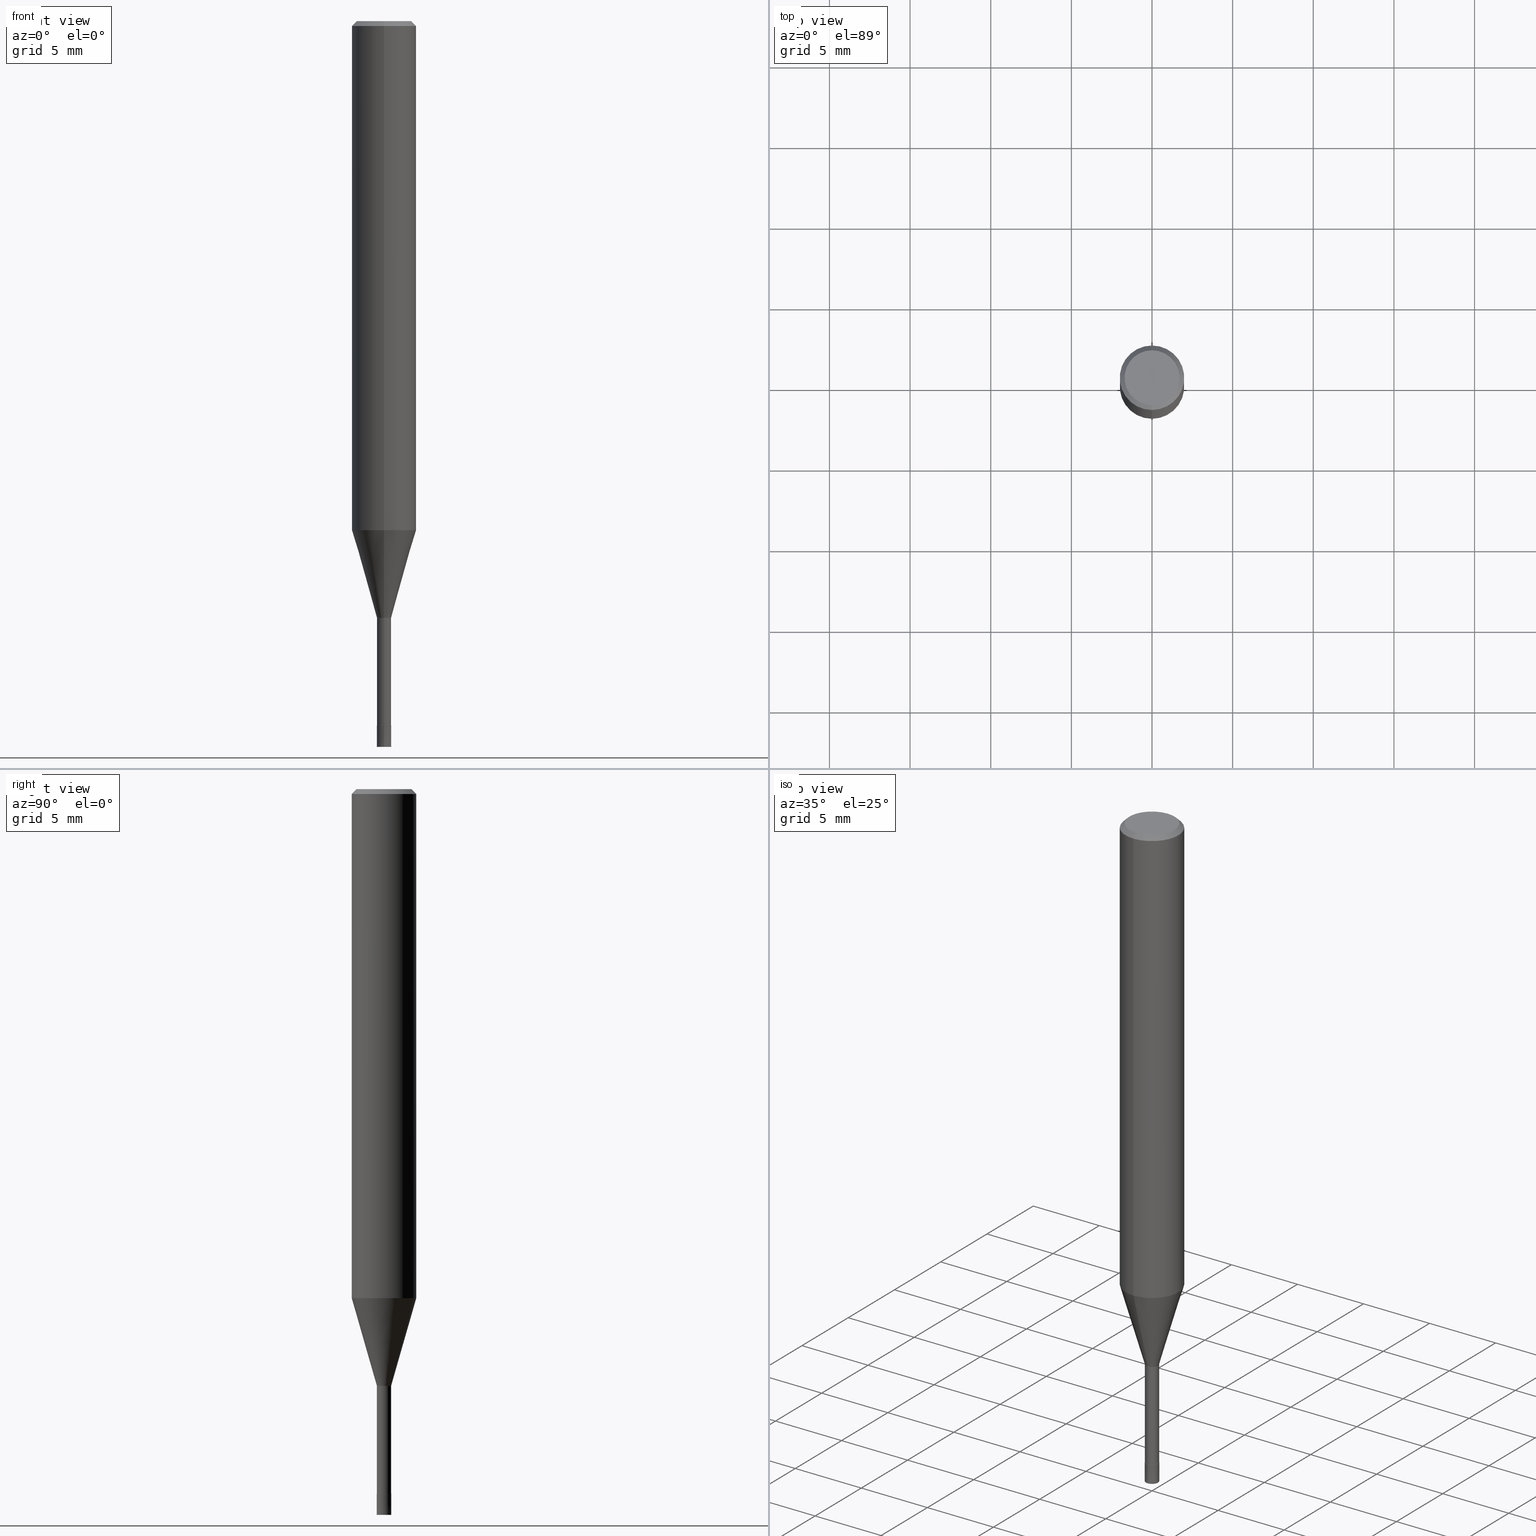
[diagram: canonical four-view strip — front | top / right | iso, engineering-drawing reading convention]
A machine part, canonical four-view strip (front | top / right | iso — engineering-drawing reading convention). The complete STEP part file that produces these views, byte-faithful:
ISO-10303-21;
HEADER;
FILE_DESCRIPTION(('no description'),'unknown implementation level');
FILE_NAME('HLS2009-080-Huellk.stp','  ',('CIMSOURCE GmbH'),('CADClick - KiM GmbH - www.kimweb.de'),'unknown preprocess','ACIS','unknown authorization');
FILE_SCHEMA(('automotive_design'));
ENDSEC;
DATA;
#1=MECHANICAL_DESIGN_GEOMETRIC_PRESENTATION_REPRESENTATION(' ',(#14,#15,#16,#17,#18,#19,#20,#21,#22,#23,#24,#25,#26,#27,#28,#29,#30,#31,#32,#33,#34,#35,#36,#37,#38,#39,#40,#41,#42,#43,#44,#45,#46,#47,#48,#49,#50,#51,#52,#53,#54,#55,#56,#57,#58,#59,#60,#61,#62,#63,#64,#65,#66,#67,#68,#69,#70,#71,#72),#10);
#2=PRODUCT_DEFINITION_CONTEXT('',#73,'design');
#3=APPLICATION_PROTOCOL_DEFINITION('INTERNATIONAL STANDARD','automotive_design',1994,#73);
#4=PRODUCT_CATEGORY_RELATIONSHIP('NONE','NONE',#74,#75);
#5=SHAPE_DEFINITION_REPRESENTATION(#76,#77);
#6=PRODUCT_DEFINITION_CONTEXT('',#78,'design');
#7=APPLICATION_PROTOCOL_DEFINITION('INTERNATIONAL STANDARD','automotive_design',1994,#78);
#8=PRODUCT_CATEGORY_RELATIONSHIP('NONE','NONE',#79,#80);
#9=SHAPE_DEFINITION_REPRESENTATION(#81,#82);
#10= (GEOMETRIC_REPRESENTATION_CONTEXT(3)GLOBAL_UNCERTAINTY_ASSIGNED_CONTEXT((#85))GLOBAL_UNIT_ASSIGNED_CONTEXT((#87,#88,#89))REPRESENTATION_CONTEXT('NONE','WORKSPACE'));
#14=STYLED_ITEM('',(#91),#92);
#15=STYLED_ITEM('',(#93),#94);
#16=STYLED_ITEM('',(#95),#96);
#17=STYLED_ITEM('',(#97),#98);
#18=STYLED_ITEM('',(#99),#100);
#19=STYLED_ITEM('',(#101),#102);
#20=STYLED_ITEM('',(#103),#104);
#21=STYLED_ITEM('',(#105),#106);
#22=STYLED_ITEM('',(#107),#108);
#23=STYLED_ITEM('',(#109),#110);
#24=STYLED_ITEM('',(#111),#112);
#25=STYLED_ITEM('',(#113),#114);
#26=STYLED_ITEM('',(#115),#116);
#27=STYLED_ITEM('',(#117),#118);
#28=STYLED_ITEM('',(#119),#120);
#29=STYLED_ITEM('',(#121),#122);
#30=STYLED_ITEM('',(#123),#124);
#31=STYLED_ITEM('',(#125),#126);
#32=STYLED_ITEM('',(#127),#128);
#33=STYLED_ITEM('',(#129),#130);
#34=STYLED_ITEM('',(#131),#132);
#35=STYLED_ITEM('',(#133),#134);
#36=STYLED_ITEM('',(#135),#136);
#37=STYLED_ITEM('',(#137),#138);
#38=STYLED_ITEM('',(#139),#140);
#39=STYLED_ITEM('',(#141),#142);
#40=STYLED_ITEM('',(#143),#144);
#41=STYLED_ITEM('',(#145),#146);
#42=STYLED_ITEM('',(#147),#148);
#43=STYLED_ITEM('',(#149),#150);
#44=STYLED_ITEM('',(#151),#152);
#45=STYLED_ITEM('',(#153),#154);
#46=STYLED_ITEM('',(#155),#156);
#47=STYLED_ITEM('',(#157),#158);
#48=STYLED_ITEM('',(#159),#160);
#49=STYLED_ITEM('',(#161),#162);
#50=STYLED_ITEM('',(#163),#164);
#51=STYLED_ITEM('',(#165),#166);
#52=STYLED_ITEM('',(#167),#168);
#53=STYLED_ITEM('',(#169),#170);
#54=STYLED_ITEM('',(#171),#172);
#55=STYLED_ITEM('',(#173),#174);
#56=STYLED_ITEM('',(#175),#176);
#57=STYLED_ITEM('',(#177),#178);
#58=STYLED_ITEM('',(#179),#180);
#59=STYLED_ITEM('',(#181),#182);
#60=STYLED_ITEM('',(#183),#184);
#61=STYLED_ITEM('',(#185),#186);
#62=STYLED_ITEM('',(#187),#188);
#63=STYLED_ITEM('',(#189),#190);
#64=STYLED_ITEM('',(#191),#192);
#65=STYLED_ITEM('',(#193),#194);
#66=STYLED_ITEM('',(#195),#196);
#67=STYLED_ITEM('',(#197),#198);
#68=STYLED_ITEM('',(#199),#200);
#69=STYLED_ITEM('',(#201),#202);
#70=STYLED_ITEM('',(#203),#204);
#71=STYLED_ITEM('',(#205),#206);
#72=STYLED_ITEM('',(#207),#208);
#73=APPLICATION_CONTEXT(' ');
#74=PRODUCT_CATEGORY('part','NONE');
#75=PRODUCT_RELATED_PRODUCT_CATEGORY('detail',' ',(#209));
#76=PRODUCT_DEFINITION_SHAPE('NONE','NONE',#210);
#77=ADVANCED_BREP_SHAPE_REPRESENTATION('1',(#164,#211),#10);
#78=APPLICATION_CONTEXT(' ');
#79=PRODUCT_CATEGORY('part','NONE');
#80=PRODUCT_RELATED_PRODUCT_CATEGORY('detail',' ',(#212));
#81=PRODUCT_DEFINITION_SHAPE('NONE','NONE',#213);
#82=ADVANCED_BREP_SHAPE_REPRESENTATION('2',(#162,#214),#10);
#85=UNCERTAINTY_MEASURE_WITH_UNIT(LENGTH_MEASURE(1.0E-006),#87,'','');
#87= (CONVERSION_BASED_UNIT('MILLIMETRE',#217)LENGTH_UNIT()NAMED_UNIT(#220));
#88= (NAMED_UNIT(#222)PLANE_ANGLE_UNIT()SI_UNIT($,.RADIAN.));
#89= (NAMED_UNIT(#222)SOLID_ANGLE_UNIT()SI_UNIT($,.STERADIAN.));
#91=PRESENTATION_STYLE_ASSIGNMENT((#228));
#92=VERTEX_POINT('',#229);
#93=PRESENTATION_STYLE_ASSIGNMENT((#230));
#94=ADVANCED_FACE('',(#231),#232,.T.);
#95=PRESENTATION_STYLE_ASSIGNMENT((#233));
#96=EDGE_CURVE('',#146,#114,#234,.T.);
#97=PRESENTATION_STYLE_ASSIGNMENT((#235));
#98=VERTEX_POINT('',#236);
#99=PRESENTATION_STYLE_ASSIGNMENT((#237));
#100=ADVANCED_FACE('',(#238),#239,.T.);
#101=PRESENTATION_STYLE_ASSIGNMENT((#240));
#102=EDGE_CURVE('',#122,#126,#241,.T.);
#103=PRESENTATION_STYLE_ASSIGNMENT((#242));
#104=EDGE_CURVE('',#108,#110,#243,.T.);
#105=PRESENTATION_STYLE_ASSIGNMENT((#244));
#106=EDGE_CURVE('',#152,#178,#245,.T.);
#107=PRESENTATION_STYLE_ASSIGNMENT((#246));
#108=VERTEX_POINT('',#247);
#109=PRESENTATION_STYLE_ASSIGNMENT((#248));
#110=VERTEX_POINT('',#249);
#111=PRESENTATION_STYLE_ASSIGNMENT((#250));
#112=EDGE_CURVE('',#98,#108,#251,.T.);
#113=PRESENTATION_STYLE_ASSIGNMENT((#252));
#114=VERTEX_POINT('',#253);
#115=PRESENTATION_STYLE_ASSIGNMENT((#254));
#116=ADVANCED_FACE('',(#255),#256,.T.);
#117=PRESENTATION_STYLE_ASSIGNMENT((#257));
#118=EDGE_CURVE('',#110,#122,#258,.T.);
#119=PRESENTATION_STYLE_ASSIGNMENT((#259));
#120=ADVANCED_FACE('',(#260),#261,.T.);
#121=PRESENTATION_STYLE_ASSIGNMENT((#262));
#122=VERTEX_POINT('',#263);
#123=PRESENTATION_STYLE_ASSIGNMENT((#264));
#124=EDGE_CURVE('',#98,#122,#265,.T.);
#125=PRESENTATION_STYLE_ASSIGNMENT((#266));
#126=VERTEX_POINT('',#267);
#127=PRESENTATION_STYLE_ASSIGNMENT((#268));
#128=ADVANCED_FACE('',(#269),#270,.T.);
#129=PRESENTATION_STYLE_ASSIGNMENT((#271));
#130=VERTEX_POINT('',#272);
#131=PRESENTATION_STYLE_ASSIGNMENT((#273));
#132=EDGE_CURVE('',#146,#152,#274,.T.);
#133=PRESENTATION_STYLE_ASSIGNMENT((#275));
#134=ADVANCED_FACE('',(#276),#277,.T.);
#135=PRESENTATION_STYLE_ASSIGNMENT((#278));
#136=EDGE_CURVE('',#208,#92,#279,.T.);
#137=PRESENTATION_STYLE_ASSIGNMENT((#280));
#138=ADVANCED_FACE('',(#281,#282),#283,.T.);
#139=PRESENTATION_STYLE_ASSIGNMENT((#284));
#140=EDGE_CURVE('',#188,#144,#285,.T.);
#141=PRESENTATION_STYLE_ASSIGNMENT((#286));
#142=ADVANCED_FACE('',(#287),#288,.T.);
#143=PRESENTATION_STYLE_ASSIGNMENT((#289));
#144=VERTEX_POINT('',#290);
#145=PRESENTATION_STYLE_ASSIGNMENT((#291));
#146=VERTEX_POINT('',#292);
#147=PRESENTATION_STYLE_ASSIGNMENT((#293));
#148=EDGE_CURVE('',#178,#152,#294,.T.);
#149=PRESENTATION_STYLE_ASSIGNMENT((#295));
#150=ADVANCED_FACE('',(#296),#297,.T.);
#151=PRESENTATION_STYLE_ASSIGNMENT((#298));
#152=VERTEX_POINT('',#299);
#153=PRESENTATION_STYLE_ASSIGNMENT((#300));
#154=ADVANCED_FACE('',(#301),#302,.T.);
#155=PRESENTATION_STYLE_ASSIGNMENT((#303));
#156=EDGE_CURVE('',#130,#92,#304,.T.);
#157=PRESENTATION_STYLE_ASSIGNMENT((#305));
#158=EDGE_CURVE('',#208,#188,#306,.T.);
#159=PRESENTATION_STYLE_ASSIGNMENT((#307));
#160=ADVANCED_FACE('',(#308),#309,.T.);
#161=PRESENTATION_STYLE_ASSIGNMENT((#310));
#162=MANIFOLD_SOLID_BREP('2',#311);
#163=PRESENTATION_STYLE_ASSIGNMENT((#312));
#164=MANIFOLD_SOLID_BREP('1',#313);
#165=PRESENTATION_STYLE_ASSIGNMENT((#314));
#166=EDGE_CURVE('',#110,#108,#315,.T.);
#167=PRESENTATION_STYLE_ASSIGNMENT((#316));
#168=EDGE_CURVE('',#122,#98,#317,.T.);
#169=PRESENTATION_STYLE_ASSIGNMENT((#318));
#170=VERTEX_POINT('',#319);
#171=PRESENTATION_STYLE_ASSIGNMENT((#320));
#172=EDGE_CURVE('',#114,#146,#321,.T.);
#173=PRESENTATION_STYLE_ASSIGNMENT((#322));
#174=EDGE_CURVE('',#126,#184,#323,.T.);
#175=PRESENTATION_STYLE_ASSIGNMENT((#324));
#176=EDGE_CURVE('',#184,#126,#325,.T.);
#177=PRESENTATION_STYLE_ASSIGNMENT((#326));
#178=VERTEX_POINT('',#327);
#179=PRESENTATION_STYLE_ASSIGNMENT((#328));
#180=EDGE_CURVE('',#130,#188,#329,.T.);
#181=PRESENTATION_STYLE_ASSIGNMENT((#330));
#182=EDGE_CURVE('',#178,#114,#331,.T.);
#183=PRESENTATION_STYLE_ASSIGNMENT((#332));
#184=VERTEX_POINT('',#333);
#185=PRESENTATION_STYLE_ASSIGNMENT((#334));
#186=ADVANCED_FACE('',(#335),#336,.T.);
#187=PRESENTATION_STYLE_ASSIGNMENT((#337));
#188=VERTEX_POINT('',#338);
#189=PRESENTATION_STYLE_ASSIGNMENT((#339));
#190=EDGE_CURVE('',#184,#98,#340,.T.);
#191=PRESENTATION_STYLE_ASSIGNMENT((#341));
#192=ADVANCED_FACE('',(#342),#343,.T.);
#193=PRESENTATION_STYLE_ASSIGNMENT((#344));
#194=EDGE_CURVE('',#188,#130,#345,.T.);
#195=PRESENTATION_STYLE_ASSIGNMENT((#346));
#196=ADVANCED_FACE('',(#347),#348,.T.);
#197=PRESENTATION_STYLE_ASSIGNMENT((#349));
#198=EDGE_CURVE('',#92,#208,#350,.T.);
#199=PRESENTATION_STYLE_ASSIGNMENT((#351));
#200=EDGE_CURVE('',#170,#130,#352,.T.);
#201=PRESENTATION_STYLE_ASSIGNMENT((#353));
#202=EDGE_CURVE('',#170,#144,#354,.T.);
#203=PRESENTATION_STYLE_ASSIGNMENT((#355));
#204=EDGE_CURVE('',#144,#170,#356,.T.);
#205=PRESENTATION_STYLE_ASSIGNMENT((#357));
#206=ADVANCED_FACE('',(#358),#359,.T.);
#207=PRESENTATION_STYLE_ASSIGNMENT((#360));
#208=VERTEX_POINT('',#361);
#209=PRODUCT('1','1','PART-1-DESC',(#362));
#210=PRODUCT_DEFINITION('NONE','NONE',#363,#2);
#211=AXIS2_PLACEMENT_3D('',#364,#365,#366);
#212=PRODUCT('2','2','PART-2-DESC',(#367));
#213=PRODUCT_DEFINITION('NONE','NONE',#368,#6);
#214=AXIS2_PLACEMENT_3D('',#369,#370,#371);
#217=LENGTH_MEASURE_WITH_UNIT(LENGTH_MEASURE(1.0),#372);
#220=DIMENSIONAL_EXPONENTS(1.0,0.0,0.0,0.0,0.0,0.0,0.0);
#222=DIMENSIONAL_EXPONENTS(0.0,0.0,0.0,0.0,0.0,0.0,0.0);
#228=POINT_STYLE(' ',#373,POSITIVE_LENGTH_MEASURE(1.0E-006),#374);
#229=CARTESIAN_POINT('',(0.0,0.43995,-43.7));
#230=SURFACE_STYLE_USAGE(.BOTH.,#375);
#231=FACE_OUTER_BOUND('',#376,.T.);
#232=CONICAL_SURFACE('',#377,0.44995,7.69230767713464E-005);
#233=CURVE_STYLE('',#378,POSITIVE_LENGTH_MEASURE(1.0E-006),#379);
#234=CIRCLE('',#380,0.4499);
#235=POINT_STYLE(' ',#381,POSITIVE_LENGTH_MEASURE(1.0E-006),#382);
#236=CARTESIAN_POINT('',(0.0,2.0,-0.300000000000001));
#237=SURFACE_STYLE_USAGE(.BOTH.,#383);
#238=FACE_OUTER_BOUND('',#384,.T.);
#239=CONICAL_SURFACE('',#385,1.21995,0.279270532486472);
#240=CURVE_STYLE('',#386,POSITIVE_LENGTH_MEASURE(1.0E-006),#387);
#241=LINE('',#388,#389);
#242=CURVE_STYLE('',#390,POSITIVE_LENGTH_MEASURE(1.0E-006),#391);
#243=CIRCLE('',#392,2.0);
#244=CURVE_STYLE('',#393,POSITIVE_LENGTH_MEASURE(1.0E-006),#394);
#245=CIRCLE('',#395,0.45);
#246=POINT_STYLE(' ',#396,POSITIVE_LENGTH_MEASURE(1.0E-006),#397);
#247=CARTESIAN_POINT('',(0.0,2.0,-31.56));
#248=POINT_STYLE(' ',#398,POSITIVE_LENGTH_MEASURE(1.0E-006),#399);
#249=CARTESIAN_POINT('',(2.44921270764475E-016,-2.0,-31.56));
#250=CURVE_STYLE('',#400,POSITIVE_LENGTH_MEASURE(1.0E-006),#401);
#251=LINE('',#402,#403);
#252=POINT_STYLE(' ',#404,POSITIVE_LENGTH_MEASURE(1.0E-006),#405);
#253=CARTESIAN_POINT('',(5.50950398584687E-017,-0.4499,-43.7));
#254=SURFACE_STYLE_USAGE(.BOTH.,#406);
#255=FACE_OUTER_BOUND('',#407,.T.);
#256=CYLINDRICAL_SURFACE('',#408,0.43995);
#257=CURVE_STYLE('',#409,POSITIVE_LENGTH_MEASURE(1.0E-006),#410);
#258=LINE('',#411,#412);
#259=SURFACE_STYLE_USAGE(.BOTH.,#413);
#260=FACE_OUTER_BOUND('',#414,.T.);
#261=PLANE('',#415);
#262=POINT_STYLE(' ',#416,POSITIVE_LENGTH_MEASURE(1.0E-006),#417);
#263=CARTESIAN_POINT('',(2.44921270764475E-016,-2.0,-0.300000000000001));
#264=CURVE_STYLE('',#418,POSITIVE_LENGTH_MEASURE(1.0E-006),#419);
#265=CIRCLE('',#420,2.0);
#266=POINT_STYLE(' ',#421,POSITIVE_LENGTH_MEASURE(1.0E-006),#422);
#267=CARTESIAN_POINT('',(2.08183080149804E-016,-1.7,0.0));
#268=SURFACE_STYLE_USAGE(.BOTH.,#423);
#269=FACE_OUTER_BOUND('',#424,.T.);
#270=CONICAL_SURFACE('',#425,0.44995,7.69230767713464E-005);
#271=POINT_STYLE(' ',#426,POSITIVE_LENGTH_MEASURE(1.0E-006),#427);
#272=CARTESIAN_POINT('',(0.0,0.43995,-37.0));
#273=CURVE_STYLE('',#428,POSITIVE_LENGTH_MEASURE(1.0E-006),#429);
#274=LINE('',#430,#431);
#275=SURFACE_STYLE_USAGE(.BOTH.,#432);
#276=FACE_OUTER_BOUND('',#433,.T.);
#277=PLANE('',#434);
#278=CURVE_STYLE('',#435,POSITIVE_LENGTH_MEASURE(1.0E-006),#436);
#279=CIRCLE('',#437,0.43995);
#280=SURFACE_STYLE_USAGE(.BOTH.,#438);
#281=FACE_OUTER_BOUND('',#439,.T.);
#282=FACE_BOUND('',#440,.T.);
#283=PLANE('',#441);
#284=CURVE_STYLE('',#442,POSITIVE_LENGTH_MEASURE(1.0E-006),#443);
#285=LINE('',#444,#445);
#286=SURFACE_STYLE_USAGE(.BOTH.,#446);
#287=FACE_OUTER_BOUND('',#447,.T.);
#288=CYLINDRICAL_SURFACE('',#448,2.0);
#289=POINT_STYLE(' ',#449,POSITIVE_LENGTH_MEASURE(1.0E-006),#450);
#290=CARTESIAN_POINT('',(2.44915147732706E-016,-1.99995,-31.56));
#291=POINT_STYLE(' ',#451,POSITIVE_LENGTH_MEASURE(1.0E-006),#452);
#292=CARTESIAN_POINT('',(0.0,0.4499,-43.7));
#293=CURVE_STYLE('',#453,POSITIVE_LENGTH_MEASURE(1.0E-006),#454);
#294=CIRCLE('',#455,0.45);
#295=SURFACE_STYLE_USAGE(.BOTH.,#456);
#296=FACE_OUTER_BOUND('',#457,.T.);
#297=PLANE('',#458);
#298=POINT_STYLE(' ',#459,POSITIVE_LENGTH_MEASURE(1.0E-006),#460);
#299=CARTESIAN_POINT('',(0.0,0.45,-45.0));
#300=SURFACE_STYLE_USAGE(.BOTH.,#461);
#301=FACE_OUTER_BOUND('',#462,.T.);
#302=CYLINDRICAL_SURFACE('',#463,2.0);
#303=CURVE_STYLE('',#464,POSITIVE_LENGTH_MEASURE(1.0E-006),#465);
#304=LINE('',#466,#467);
#305=CURVE_STYLE('',#468,POSITIVE_LENGTH_MEASURE(1.0E-006),#469);
#306=LINE('',#470,#471);
#307=SURFACE_STYLE_USAGE(.BOTH.,#472);
#308=FACE_OUTER_BOUND('',#473,.T.);
#309=PLANE('',#474);
#310=SURFACE_STYLE_USAGE(.BOTH.,#475);
#311=CLOSED_SHELL('',(#94,#160,#128,#150));
#312=SURFACE_STYLE_USAGE(.BOTH.,#476);
#313=CLOSED_SHELL('',(#192,#206,#142,#196,#138,#134,#186,#154,#100,#116,#120));
#314=CURVE_STYLE('',#477,POSITIVE_LENGTH_MEASURE(1.0E-006),#478);
#315=CIRCLE('',#479,2.0);
#316=CURVE_STYLE('',#480,POSITIVE_LENGTH_MEASURE(1.0E-006),#481);
#317=CIRCLE('',#482,2.0);
#318=POINT_STYLE(' ',#483,POSITIVE_LENGTH_MEASURE(1.0E-006),#484);
#319=CARTESIAN_POINT('',(0.0,1.99995,-31.56));
#320=CURVE_STYLE('',#485,POSITIVE_LENGTH_MEASURE(1.0E-006),#486);
#321=CIRCLE('',#487,0.4499);
#322=CURVE_STYLE('',#488,POSITIVE_LENGTH_MEASURE(1.0E-006),#489);
#323=CIRCLE('',#490,1.7);
#324=CURVE_STYLE('',#491,POSITIVE_LENGTH_MEASURE(1.0E-006),#492);
#325=CIRCLE('',#493,1.7);
#326=POINT_STYLE(' ',#494,POSITIVE_LENGTH_MEASURE(1.0E-006),#495);
#327=CARTESIAN_POINT('',(5.5107285922007E-017,-0.45,-45.0));
#328=CURVE_STYLE('',#496,POSITIVE_LENGTH_MEASURE(1.0E-006),#497);
#329=CIRCLE('',#498,0.43995);
#330=CURVE_STYLE('',#499,POSITIVE_LENGTH_MEASURE(1.0E-006),#500);
#331=LINE('',#501,#502);
#332=POINT_STYLE(' ',#503,POSITIVE_LENGTH_MEASURE(1.0E-006),#504);
#333=CARTESIAN_POINT('',(0.0,1.7,0.0));
#334=SURFACE_STYLE_USAGE(.BOTH.,#505);
#335=FACE_OUTER_BOUND('',#506,.T.);
#336=CONICAL_SURFACE('',#507,1.85,0.785398163397447);
#337=POINT_STYLE(' ',#508,POSITIVE_LENGTH_MEASURE(1.0E-006),#509);
#338=CARTESIAN_POINT('',(5.38765565364155E-017,-0.43995,-37.0));
#339=CURVE_STYLE('',#510,POSITIVE_LENGTH_MEASURE(1.0E-006),#511);
#340=LINE('',#512,#513);
#341=SURFACE_STYLE_USAGE(.BOTH.,#514);
#342=FACE_OUTER_BOUND('',#515,.T.);
#343=CYLINDRICAL_SURFACE('',#516,0.43995);
#344=CURVE_STYLE('',#517,POSITIVE_LENGTH_MEASURE(1.0E-006),#518);
#345=CIRCLE('',#519,0.43995);
#346=SURFACE_STYLE_USAGE(.BOTH.,#520);
#347=FACE_OUTER_BOUND('',#521,.T.);
#348=CONICAL_SURFACE('',#522,1.85,0.785398163397447);
#349=CURVE_STYLE('',#523,POSITIVE_LENGTH_MEASURE(1.0E-006),#524);
#350=CIRCLE('',#525,0.43995);
#351=CURVE_STYLE('',#526,POSITIVE_LENGTH_MEASURE(1.0E-006),#527);
#352=LINE('',#528,#529);
#353=CURVE_STYLE('',#530,POSITIVE_LENGTH_MEASURE(1.0E-006),#531);
#354=CIRCLE('',#532,1.99995);
#355=CURVE_STYLE('',#533,POSITIVE_LENGTH_MEASURE(1.0E-006),#534);
#356=CIRCLE('',#535,1.99995);
#357=SURFACE_STYLE_USAGE(.BOTH.,#536);
#358=FACE_OUTER_BOUND('',#537,.T.);
#359=CONICAL_SURFACE('',#538,1.21995,0.279270532486472);
#360=POINT_STYLE(' ',#539,POSITIVE_LENGTH_MEASURE(1.0E-006),#540);
#361=CARTESIAN_POINT('',(5.38765565364155E-017,-0.43995,-43.7));
#362=PRODUCT_CONTEXT('',#73,'mechanical');
#363=PRODUCT_DEFINITION_FORMATION_WITH_SPECIFIED_SOURCE(' ','NONE',#209,.NOT_KNOWN.);
#364=CARTESIAN_POINT('',(0.0,0.0,0.0));
#365=DIRECTION('',(0.0,0.0,1.0));
#366=DIRECTION('',(1.0,0.0,0.0));
#367=PRODUCT_CONTEXT('',#78,'mechanical');
#368=PRODUCT_DEFINITION_FORMATION_WITH_SPECIFIED_SOURCE(' ','NONE',#212,.NOT_KNOWN.);
#369=CARTESIAN_POINT('',(0.0,0.0,0.0));
#370=DIRECTION('',(0.0,0.0,1.0));
#371=DIRECTION('',(1.0,0.0,0.0));
#372= (NAMED_UNIT(#220)LENGTH_UNIT()SI_UNIT(.MILLI.,.METRE.));
#373=PRE_DEFINED_MARKER('');
#374=COLOUR_RGB('',0.498039215803146,0.498039215803146,0.498039215803146);
#375=SURFACE_SIDE_STYLE('',(#542));
#376=EDGE_LOOP('',(#543,#544,#545,#546));
#377=AXIS2_PLACEMENT_3D('',#547,#548,#549);
#378=DRAUGHTING_PRE_DEFINED_CURVE_FONT('continuous');
#379=COLOUR_RGB('',0.800000011920929,0.800000011920929,0.800000011920929);
#380=AXIS2_PLACEMENT_3D('',#550,#551,#552);
#381=PRE_DEFINED_MARKER('');
#382=COLOUR_RGB('',0.498039215803146,0.498039215803146,0.498039215803146);
#383=SURFACE_SIDE_STYLE('',(#553));
#384=EDGE_LOOP('',(#554,#555,#556,#557));
#385=AXIS2_PLACEMENT_3D('',#558,#559,#560);
#386=DRAUGHTING_PRE_DEFINED_CURVE_FONT('continuous');
#387=COLOUR_RGB('',0.498039215803146,0.498039215803146,0.498039215803146);
#388=CARTESIAN_POINT('',(2.2655217545714E-016,-1.85,-0.149999999999999));
#389=VECTOR('',#561,1.0);
#390=DRAUGHTING_PRE_DEFINED_CURVE_FONT('continuous');
#391=COLOUR_RGB('',0.498039215803146,0.498039215803146,0.498039215803146);
#392=AXIS2_PLACEMENT_3D('',#562,#563,#564);
#393=DRAUGHTING_PRE_DEFINED_CURVE_FONT('continuous');
#394=COLOUR_RGB('',0.800000011920929,0.800000011920929,0.800000011920929);
#395=AXIS2_PLACEMENT_3D('',#565,#566,#567);
#396=PRE_DEFINED_MARKER('');
#397=COLOUR_RGB('',0.498039215803146,0.498039215803146,0.498039215803146);
#398=PRE_DEFINED_MARKER('');
#399=COLOUR_RGB('',0.498039215803146,0.498039215803146,0.498039215803146);
#400=DRAUGHTING_PRE_DEFINED_CURVE_FONT('continuous');
#401=COLOUR_RGB('',0.498039215803146,0.498039215803146,0.498039215803146);
#402=CARTESIAN_POINT('',(-2.44921270764475E-016,2.0,-15.93));
#403=VECTOR('',#568,1.0);
#404=PRE_DEFINED_MARKER('');
#405=COLOUR_RGB('',0.800000011920929,0.800000011920929,0.800000011920929);
#406=SURFACE_SIDE_STYLE('',(#569));
#407=EDGE_LOOP('',(#570,#571,#572,#573));
#408=AXIS2_PLACEMENT_3D('',#574,#575,#576);
#409=DRAUGHTING_PRE_DEFINED_CURVE_FONT('continuous');
#410=COLOUR_RGB('',0.498039215803146,0.498039215803146,0.498039215803146);
#411=CARTESIAN_POINT('',(2.44921270764475E-016,-2.0,-15.93));
#412=VECTOR('',#577,1.0);
#413=SURFACE_SIDE_STYLE('',(#578));
#414=EDGE_LOOP('',(#579,#580));
#415=AXIS2_PLACEMENT_3D('',#581,#582,#583);
#416=PRE_DEFINED_MARKER('');
#417=COLOUR_RGB('',0.498039215803146,0.498039215803146,0.498039215803146);
#418=DRAUGHTING_PRE_DEFINED_CURVE_FONT('continuous');
#419=COLOUR_RGB('',0.498039215803146,0.498039215803146,0.498039215803146);
#420=AXIS2_PLACEMENT_3D('',#584,#585,#586);
#421=PRE_DEFINED_MARKER('');
#422=COLOUR_RGB('',0.498039215803146,0.498039215803146,0.498039215803146);
#423=SURFACE_SIDE_STYLE('',(#587));
#424=EDGE_LOOP('',(#588,#589,#590,#591));
#425=AXIS2_PLACEMENT_3D('',#592,#593,#594);
#426=PRE_DEFINED_MARKER('');
#427=COLOUR_RGB('',0.498039215803146,0.498039215803146,0.498039215803146);
#428=DRAUGHTING_PRE_DEFINED_CURVE_FONT('continuous');
#429=COLOUR_RGB('',0.800000011920929,0.800000011920929,0.800000011920929);
#430=CARTESIAN_POINT('',(-5.51011628902379E-017,0.44995,-44.35));
#431=VECTOR('',#595,1.0);
#432=SURFACE_SIDE_STYLE('',(#596));
#433=EDGE_LOOP('',(#597,#598));
#434=AXIS2_PLACEMENT_3D('',#599,#600,#601);
#435=DRAUGHTING_PRE_DEFINED_CURVE_FONT('continuous');
#436=COLOUR_RGB('',0.498039215803146,0.498039215803146,0.498039215803146);
#437=AXIS2_PLACEMENT_3D('',#602,#603,#604);
#438=SURFACE_SIDE_STYLE('',(#605));
#439=EDGE_LOOP('',(#606,#607));
#440=EDGE_LOOP('',(#608,#609));
#441=AXIS2_PLACEMENT_3D('',#610,#611,#612);
#442=DRAUGHTING_PRE_DEFINED_CURVE_FONT('continuous');
#443=COLOUR_RGB('',0.498039215803146,0.498039215803146,0.498039215803146);
#444=CARTESIAN_POINT('',(1.49395852134561E-016,-1.21995,-34.28));
#445=VECTOR('',#613,1.0);
#446=SURFACE_SIDE_STYLE('',(#614));
#447=EDGE_LOOP('',(#615,#616,#617,#618));
#448=AXIS2_PLACEMENT_3D('',#619,#620,#621);
#449=PRE_DEFINED_MARKER('');
#450=COLOUR_RGB('',0.498039215803146,0.498039215803146,0.498039215803146);
#451=PRE_DEFINED_MARKER('');
#452=COLOUR_RGB('',0.800000011920929,0.800000011920929,0.800000011920929);
#453=DRAUGHTING_PRE_DEFINED_CURVE_FONT('continuous');
#454=COLOUR_RGB('',0.800000011920929,0.800000011920929,0.800000011920929);
#455=AXIS2_PLACEMENT_3D('',#622,#623,#624);
#456=SURFACE_SIDE_STYLE('',(#625));
#457=EDGE_LOOP('',(#626,#627));
#458=AXIS2_PLACEMENT_3D('',#628,#629,#630);
#459=PRE_DEFINED_MARKER('');
#460=COLOUR_RGB('',0.800000011920929,0.800000011920929,0.800000011920929);
#461=SURFACE_SIDE_STYLE('',(#631));
#462=EDGE_LOOP('',(#632,#633,#634,#635));
#463=AXIS2_PLACEMENT_3D('',#636,#637,#638);
#464=DRAUGHTING_PRE_DEFINED_CURVE_FONT('continuous');
#465=COLOUR_RGB('',0.498039215803146,0.498039215803146,0.498039215803146);
#466=CARTESIAN_POINT('',(-5.38765565364155E-017,0.43995,-40.35));
#467=VECTOR('',#639,1.0);
#468=DRAUGHTING_PRE_DEFINED_CURVE_FONT('continuous');
#469=COLOUR_RGB('',0.498039215803146,0.498039215803146,0.498039215803146);
#470=CARTESIAN_POINT('',(5.38765565364155E-017,-0.43995,-40.35));
#471=VECTOR('',#640,1.0);
#472=SURFACE_SIDE_STYLE('',(#641));
#473=EDGE_LOOP('',(#642,#643));
#474=AXIS2_PLACEMENT_3D('',#644,#645,#646);
#475=SURFACE_SIDE_STYLE('',(#647));
#476=SURFACE_SIDE_STYLE('',(#648));
#477=DRAUGHTING_PRE_DEFINED_CURVE_FONT('continuous');
#478=COLOUR_RGB('',0.498039215803146,0.498039215803146,0.498039215803146);
#479=AXIS2_PLACEMENT_3D('',#649,#650,#651);
#480=DRAUGHTING_PRE_DEFINED_CURVE_FONT('continuous');
#481=COLOUR_RGB('',0.498039215803146,0.498039215803146,0.498039215803146);
#482=AXIS2_PLACEMENT_3D('',#652,#653,#654);
#483=PRE_DEFINED_MARKER('');
#484=COLOUR_RGB('',0.498039215803146,0.498039215803146,0.498039215803146);
#485=DRAUGHTING_PRE_DEFINED_CURVE_FONT('continuous');
#486=COLOUR_RGB('',0.800000011920929,0.800000011920929,0.800000011920929);
#487=AXIS2_PLACEMENT_3D('',#655,#656,#657);
#488=DRAUGHTING_PRE_DEFINED_CURVE_FONT('continuous');
#489=COLOUR_RGB('',0.498039215803146,0.498039215803146,0.498039215803146);
#490=AXIS2_PLACEMENT_3D('',#658,#659,#660);
#491=DRAUGHTING_PRE_DEFINED_CURVE_FONT('continuous');
#492=COLOUR_RGB('',0.498039215803146,0.498039215803146,0.498039215803146);
#493=AXIS2_PLACEMENT_3D('',#661,#662,#663);
#494=PRE_DEFINED_MARKER('');
#495=COLOUR_RGB('',0.800000011920929,0.800000011920929,0.800000011920929);
#496=DRAUGHTING_PRE_DEFINED_CURVE_FONT('continuous');
#497=COLOUR_RGB('',0.498039215803146,0.498039215803146,0.498039215803146);
#498=AXIS2_PLACEMENT_3D('',#664,#665,#666);
#499=DRAUGHTING_PRE_DEFINED_CURVE_FONT('continuous');
#500=COLOUR_RGB('',0.800000011920929,0.800000011920929,0.800000011920929);
#501=CARTESIAN_POINT('',(5.51011628902379E-017,-0.44995,-44.35));
#502=VECTOR('',#667,1.0);
#503=PRE_DEFINED_MARKER('');
#504=COLOUR_RGB('',0.498039215803146,0.498039215803146,0.498039215803146);
#505=SURFACE_SIDE_STYLE('',(#668));
#506=EDGE_LOOP('',(#669,#670,#671,#672));
#507=AXIS2_PLACEMENT_3D('',#673,#674,#675);
#508=PRE_DEFINED_MARKER('');
#509=COLOUR_RGB('',0.498039215803146,0.498039215803146,0.498039215803146);
#510=DRAUGHTING_PRE_DEFINED_CURVE_FONT('continuous');
#511=COLOUR_RGB('',0.498039215803146,0.498039215803146,0.498039215803146);
#512=CARTESIAN_POINT('',(-2.2655217545714E-016,1.85,-0.149999999999999));
#513=VECTOR('',#676,1.0);
#514=SURFACE_SIDE_STYLE('',(#677));
#515=EDGE_LOOP('',(#678,#679,#680,#681));
#516=AXIS2_PLACEMENT_3D('',#682,#683,#684);
#517=DRAUGHTING_PRE_DEFINED_CURVE_FONT('continuous');
#518=COLOUR_RGB('',0.498039215803146,0.498039215803146,0.498039215803146);
#519=AXIS2_PLACEMENT_3D('',#685,#686,#687);
#520=SURFACE_SIDE_STYLE('',(#688));
#521=EDGE_LOOP('',(#689,#690,#691,#692));
#522=AXIS2_PLACEMENT_3D('',#693,#694,#695);
#523=DRAUGHTING_PRE_DEFINED_CURVE_FONT('continuous');
#524=COLOUR_RGB('',0.498039215803146,0.498039215803146,0.498039215803146);
#525=AXIS2_PLACEMENT_3D('',#696,#697,#698);
#526=DRAUGHTING_PRE_DEFINED_CURVE_FONT('continuous');
#527=COLOUR_RGB('',0.498039215803146,0.498039215803146,0.498039215803146);
#528=CARTESIAN_POINT('',(-1.49395852134561E-016,1.21995,-34.28));
#529=VECTOR('',#699,1.0);
#530=DRAUGHTING_PRE_DEFINED_CURVE_FONT('continuous');
#531=COLOUR_RGB('',0.498039215803146,0.498039215803146,0.498039215803146);
#532=AXIS2_PLACEMENT_3D('',#700,#701,#702);
#533=DRAUGHTING_PRE_DEFINED_CURVE_FONT('continuous');
#534=COLOUR_RGB('',0.498039215803146,0.498039215803146,0.498039215803146);
#535=AXIS2_PLACEMENT_3D('',#703,#704,#705);
#536=SURFACE_SIDE_STYLE('',(#706));
#537=EDGE_LOOP('',(#707,#708,#709,#710));
#538=AXIS2_PLACEMENT_3D('',#711,#712,#713);
#539=PRE_DEFINED_MARKER('');
#540=COLOUR_RGB('',0.498039215803146,0.498039215803146,0.498039215803146);
#542=SURFACE_STYLE_FILL_AREA(#714);
#543=ORIENTED_EDGE('',*,*,#132,.F.);
#544=ORIENTED_EDGE('',*,*,#96,.T.);
#545=ORIENTED_EDGE('',*,*,#182,.F.);
#546=ORIENTED_EDGE('',*,*,#106,.F.);
#547=CARTESIAN_POINT('',(0.0,0.0,-44.35));
#548=DIRECTION('',(0.0,-0.0,-1.0));
#549=DIRECTION('',(0.0,1.0,0.0));
#550=CARTESIAN_POINT('',(0.0,0.0,-43.7));
#551=DIRECTION('',(0.0,0.0,-1.0));
#552=DIRECTION('',(0.0,1.0,0.0));
#553=SURFACE_STYLE_FILL_AREA(#715);
#554=ORIENTED_EDGE('',*,*,#200,.T.);
#555=ORIENTED_EDGE('',*,*,#194,.F.);
#556=ORIENTED_EDGE('',*,*,#140,.T.);
#557=ORIENTED_EDGE('',*,*,#204,.T.);
#558=CARTESIAN_POINT('',(0.0,0.0,-34.28));
#559=DIRECTION('',(-0.0,-0.0,1.0));
#560=DIRECTION('',(0.0,1.0,0.0));
#561=DIRECTION('',(-8.65927457071934E-017,0.707106781186546,0.707106781186549));
#562=CARTESIAN_POINT('',(0.0,0.0,-31.56));
#563=DIRECTION('',(0.0,0.0,-1.0));
#564=DIRECTION('',(0.0,1.0,0.0));
#565=CARTESIAN_POINT('',(0.0,0.0,-45.0));
#566=DIRECTION('',(0.0,0.0,-1.0));
#567=DIRECTION('',(0.0,1.0,0.0));
#568=DIRECTION('',(0.0,0.0,-1.0));
#569=SURFACE_STYLE_FILL_AREA(#716);
#570=ORIENTED_EDGE('',*,*,#156,.T.);
#571=ORIENTED_EDGE('',*,*,#136,.F.);
#572=ORIENTED_EDGE('',*,*,#158,.T.);
#573=ORIENTED_EDGE('',*,*,#194,.T.);
#574=CARTESIAN_POINT('',(0.0,0.0,-40.35));
#575=DIRECTION('',(-0.0,-0.0,1.0));
#576=DIRECTION('',(0.0,1.0,0.0));
#577=DIRECTION('',(-0.0,-0.0,1.0));
#578=SURFACE_STYLE_FILL_AREA(#717);
#579=ORIENTED_EDGE('',*,*,#198,.T.);
#580=ORIENTED_EDGE('',*,*,#136,.T.);
#581=CARTESIAN_POINT('',(0.0,0.219975,-43.7));
#582=DIRECTION('',(0.0,0.0,-1.0));
#583=DIRECTION('',(0.0,1.0,0.0));
#584=CARTESIAN_POINT('',(0.0,0.0,-0.300000000000001));
#585=DIRECTION('',(0.0,0.0,-1.0));
#586=DIRECTION('',(0.0,1.0,0.0));
#587=SURFACE_STYLE_FILL_AREA(#718);
#588=ORIENTED_EDGE('',*,*,#132,.T.);
#589=ORIENTED_EDGE('',*,*,#148,.F.);
#590=ORIENTED_EDGE('',*,*,#182,.T.);
#591=ORIENTED_EDGE('',*,*,#172,.T.);
#592=CARTESIAN_POINT('',(0.0,0.0,-44.35));
#593=DIRECTION('',(0.0,-0.0,-1.0));
#594=DIRECTION('',(0.0,1.0,0.0));
#595=DIRECTION('',(-9.42004884768574E-021,7.69230766954854E-005,-0.99999999704142));
#596=SURFACE_STYLE_FILL_AREA(#719);
#597=ORIENTED_EDGE('',*,*,#176,.F.);
#598=ORIENTED_EDGE('',*,*,#174,.F.);
#599=CARTESIAN_POINT('',(0.0,0.85,0.0));
#600=DIRECTION('',(-0.0,0.0,1.0));
#601=DIRECTION('',(0.0,-1.0,0.0));
#602=CARTESIAN_POINT('',(0.0,0.0,-43.7));
#603=DIRECTION('',(0.0,0.0,-1.0));
#604=DIRECTION('',(0.0,1.0,0.0));
#605=SURFACE_STYLE_FILL_AREA(#720);
#606=ORIENTED_EDGE('',*,*,#104,.T.);
#607=ORIENTED_EDGE('',*,*,#166,.T.);
#608=ORIENTED_EDGE('',*,*,#202,.F.);
#609=ORIENTED_EDGE('',*,*,#204,.F.);
#610=CARTESIAN_POINT('',(0.0,1.0,-31.56));
#611=DIRECTION('',(0.0,0.0,-1.0));
#612=DIRECTION('',(0.0,1.0,0.0));
#613=DIRECTION('',(3.37568272216048E-017,-0.275654516377767,0.96125677506093));
#614=SURFACE_STYLE_FILL_AREA(#721);
#615=ORIENTED_EDGE('',*,*,#112,.F.);
#616=ORIENTED_EDGE('',*,*,#124,.T.);
#617=ORIENTED_EDGE('',*,*,#118,.F.);
#618=ORIENTED_EDGE('',*,*,#104,.F.);
#619=CARTESIAN_POINT('',(0.0,0.0,-15.93));
#620=DIRECTION('',(-0.0,-0.0,1.0));
#621=DIRECTION('',(0.0,1.0,0.0));
#622=CARTESIAN_POINT('',(0.0,0.0,-45.0));
#623=DIRECTION('',(0.0,0.0,-1.0));
#624=DIRECTION('',(0.0,1.0,0.0));
#625=SURFACE_STYLE_FILL_AREA(#722);
#626=ORIENTED_EDGE('',*,*,#106,.T.);
#627=ORIENTED_EDGE('',*,*,#148,.T.);
#628=CARTESIAN_POINT('',(0.0,0.2225,-45.0));
#629=DIRECTION('',(0.0,0.0,-1.0));
#630=DIRECTION('',(0.0,1.0,0.0));
#631=SURFACE_STYLE_FILL_AREA(#723);
#632=ORIENTED_EDGE('',*,*,#112,.T.);
#633=ORIENTED_EDGE('',*,*,#166,.F.);
#634=ORIENTED_EDGE('',*,*,#118,.T.);
#635=ORIENTED_EDGE('',*,*,#168,.T.);
#636=CARTESIAN_POINT('',(0.0,0.0,-15.93));
#637=DIRECTION('',(-0.0,-0.0,1.0));
#638=DIRECTION('',(0.0,1.0,0.0));
#639=DIRECTION('',(0.0,0.0,-1.0));
#640=DIRECTION('',(-0.0,-0.0,1.0));
#641=SURFACE_STYLE_FILL_AREA(#724);
#642=ORIENTED_EDGE('',*,*,#96,.F.);
#643=ORIENTED_EDGE('',*,*,#172,.F.);
#644=CARTESIAN_POINT('',(0.0,0.22495,-43.7));
#645=DIRECTION('',(-0.0,0.0,1.0));
#646=DIRECTION('',(0.0,-1.0,0.0));
#647=SURFACE_STYLE_FILL_AREA(#725);
#648=SURFACE_STYLE_FILL_AREA(#726);
#649=CARTESIAN_POINT('',(0.0,0.0,-31.56));
#650=DIRECTION('',(0.0,0.0,-1.0));
#651=DIRECTION('',(0.0,1.0,0.0));
#652=CARTESIAN_POINT('',(0.0,0.0,-0.300000000000001));
#653=DIRECTION('',(0.0,0.0,-1.0));
#654=DIRECTION('',(0.0,1.0,0.0));
#655=CARTESIAN_POINT('',(0.0,0.0,-43.7));
#656=DIRECTION('',(0.0,0.0,-1.0));
#657=DIRECTION('',(0.0,1.0,0.0));
#658=CARTESIAN_POINT('',(0.0,0.0,0.0));
#659=DIRECTION('',(0.0,0.0,-1.0));
#660=DIRECTION('',(0.0,1.0,0.0));
#661=CARTESIAN_POINT('',(0.0,0.0,0.0));
#662=DIRECTION('',(0.0,0.0,-1.0));
#663=DIRECTION('',(0.0,1.0,0.0));
#664=CARTESIAN_POINT('',(0.0,0.0,-37.0));
#665=DIRECTION('',(0.0,0.0,-1.0));
#666=DIRECTION('',(0.0,1.0,0.0));
#667=DIRECTION('',(-9.42004884768574E-021,7.69230766954854E-005,0.99999999704142));
#668=SURFACE_STYLE_FILL_AREA(#727);
#669=ORIENTED_EDGE('',*,*,#190,.T.);
#670=ORIENTED_EDGE('',*,*,#168,.F.);
#671=ORIENTED_EDGE('',*,*,#102,.T.);
#672=ORIENTED_EDGE('',*,*,#174,.T.);
#673=CARTESIAN_POINT('',(0.0,0.0,-0.149999999999999));
#674=DIRECTION('',(0.0,-0.0,-1.0));
#675=DIRECTION('',(0.0,1.0,0.0));
#676=DIRECTION('',(-8.65927457071934E-017,0.707106781186546,-0.707106781186549));
#677=SURFACE_STYLE_FILL_AREA(#728);
#678=ORIENTED_EDGE('',*,*,#156,.F.);
#679=ORIENTED_EDGE('',*,*,#180,.T.);
#680=ORIENTED_EDGE('',*,*,#158,.F.);
#681=ORIENTED_EDGE('',*,*,#198,.F.);
#682=CARTESIAN_POINT('',(0.0,0.0,-40.35));
#683=DIRECTION('',(-0.0,-0.0,1.0));
#684=DIRECTION('',(0.0,1.0,0.0));
#685=CARTESIAN_POINT('',(0.0,0.0,-37.0));
#686=DIRECTION('',(0.0,0.0,-1.0));
#687=DIRECTION('',(0.0,1.0,0.0));
#688=SURFACE_STYLE_FILL_AREA(#729);
#689=ORIENTED_EDGE('',*,*,#190,.F.);
#690=ORIENTED_EDGE('',*,*,#176,.T.);
#691=ORIENTED_EDGE('',*,*,#102,.F.);
#692=ORIENTED_EDGE('',*,*,#124,.F.);
#693=CARTESIAN_POINT('',(0.0,0.0,-0.149999999999999));
#694=DIRECTION('',(0.0,-0.0,-1.0));
#695=DIRECTION('',(0.0,1.0,0.0));
#696=CARTESIAN_POINT('',(0.0,0.0,-43.7));
#697=DIRECTION('',(0.0,0.0,-1.0));
#698=DIRECTION('',(0.0,1.0,0.0));
#699=DIRECTION('',(3.37568272216048E-017,-0.275654516377767,-0.96125677506093));
#700=CARTESIAN_POINT('',(0.0,0.0,-31.56));
#701=DIRECTION('',(0.0,0.0,-1.0));
#702=DIRECTION('',(0.0,1.0,0.0));
#703=CARTESIAN_POINT('',(0.0,0.0,-31.56));
#704=DIRECTION('',(0.0,0.0,-1.0));
#705=DIRECTION('',(0.0,1.0,0.0));
#706=SURFACE_STYLE_FILL_AREA(#730);
#707=ORIENTED_EDGE('',*,*,#200,.F.);
#708=ORIENTED_EDGE('',*,*,#202,.T.);
#709=ORIENTED_EDGE('',*,*,#140,.F.);
#710=ORIENTED_EDGE('',*,*,#180,.F.);
#711=CARTESIAN_POINT('',(0.0,0.0,-34.28));
#712=DIRECTION('',(-0.0,-0.0,1.0));
#713=DIRECTION('',(0.0,1.0,0.0));
#714=FILL_AREA_STYLE('',(#731));
#715=FILL_AREA_STYLE('',(#732));
#716=FILL_AREA_STYLE('',(#733));
#717=FILL_AREA_STYLE('',(#734));
#718=FILL_AREA_STYLE('',(#735));
#719=FILL_AREA_STYLE('',(#736));
#720=FILL_AREA_STYLE('',(#737));
#721=FILL_AREA_STYLE('',(#738));
#722=FILL_AREA_STYLE('',(#739));
#723=FILL_AREA_STYLE('',(#740));
#724=FILL_AREA_STYLE('',(#741));
#725=FILL_AREA_STYLE('',(#742));
#726=FILL_AREA_STYLE('',(#743));
#727=FILL_AREA_STYLE('',(#744));
#728=FILL_AREA_STYLE('',(#745));
#729=FILL_AREA_STYLE('',(#746));
#730=FILL_AREA_STYLE('',(#747));
#731=FILL_AREA_STYLE_COLOUR('',#748);
#732=FILL_AREA_STYLE_COLOUR('',#749);
#733=FILL_AREA_STYLE_COLOUR('',#750);
#734=FILL_AREA_STYLE_COLOUR('',#751);
#735=FILL_AREA_STYLE_COLOUR('',#752);
#736=FILL_AREA_STYLE_COLOUR('',#753);
#737=FILL_AREA_STYLE_COLOUR('',#754);
#738=FILL_AREA_STYLE_COLOUR('',#755);
#739=FILL_AREA_STYLE_COLOUR('',#756);
#740=FILL_AREA_STYLE_COLOUR('',#757);
#741=FILL_AREA_STYLE_COLOUR('',#758);
#742=FILL_AREA_STYLE_COLOUR('',#759);
#743=FILL_AREA_STYLE_COLOUR('',#760);
#744=FILL_AREA_STYLE_COLOUR('',#761);
#745=FILL_AREA_STYLE_COLOUR('',#762);
#746=FILL_AREA_STYLE_COLOUR('',#763);
#747=FILL_AREA_STYLE_COLOUR('',#764);
#748=COLOUR_RGB('',0.800000011920929,0.800000011920929,0.800000011920929);
#749=COLOUR_RGB('',0.498039215803146,0.498039215803146,0.498039215803146);
#750=COLOUR_RGB('',0.498039215803146,0.498039215803146,0.498039215803146);
#751=COLOUR_RGB('',0.498039215803146,0.498039215803146,0.498039215803146);
#752=COLOUR_RGB('',0.800000011920929,0.800000011920929,0.800000011920929);
#753=COLOUR_RGB('',0.498039215803146,0.498039215803146,0.498039215803146);
#754=COLOUR_RGB('',0.498039215803146,0.498039215803146,0.498039215803146);
#755=COLOUR_RGB('',0.498039215803146,0.498039215803146,0.498039215803146);
#756=COLOUR_RGB('',0.800000011920929,0.800000011920929,0.800000011920929);
#757=COLOUR_RGB('',0.498039215803146,0.498039215803146,0.498039215803146);
#758=COLOUR_RGB('',0.800000011920929,0.800000011920929,0.800000011920929);
#759=COLOUR_RGB('',0.800000011920929,0.800000011920929,0.800000011920929);
#760=COLOUR_RGB('',0.498039215803146,0.498039215803146,0.498039215803146);
#761=COLOUR_RGB('',0.498039215803146,0.498039215803146,0.498039215803146);
#762=COLOUR_RGB('',0.498039215803146,0.498039215803146,0.498039215803146);
#763=COLOUR_RGB('',0.498039215803146,0.498039215803146,0.498039215803146);
#764=COLOUR_RGB('',0.498039215803146,0.498039215803146,0.498039215803146);
#765=AXIS2_PLACEMENT_3D('PCS',#766,#767,#768);
#766=CARTESIAN_POINT('',(0.0,0.0,0.0));
#767=DIRECTION('',(0.0,0.0,1.0));
#768=DIRECTION('',(1.0,0.0,0.0));
#769=AXIS2_PLACEMENT_3D('CIP',#770,#771,#772);
#770=CARTESIAN_POINT('',(0.0,0.0,-45.0));
#771=DIRECTION('',(0.0,0.0,1.0));
#772=DIRECTION('',(1.0,0.0,0.0));
#773=AXIS2_PLACEMENT_3D('CRP',#774,#775,#776);
#774=CARTESIAN_POINT('',(-0.45,0.0,-45.0));
#775=DIRECTION('',(0.0,0.0,1.0));
#776=DIRECTION('',(1.0,0.0,0.0));
#777=AXIS2_PLACEMENT_3D('MCS',#778,#779,#780);
#778=CARTESIAN_POINT('',(0.0,0.0,-31.56));
#779=DIRECTION('',(0.0,0.0,1.0));
#780=DIRECTION('',(1.0,0.0,0.0));
#781=CONSTRUCTIVE_GEOMETRY_REPRESENTATION_RELATIONSHIP('coordinate systems',$,#77,#782);
#782=CONSTRUCTIVE_GEOMETRY_REPRESENTATION('coordinate systems',(#765,#769,#773,#777),#10);
ENDSEC;
END-ISO-10303-21;
